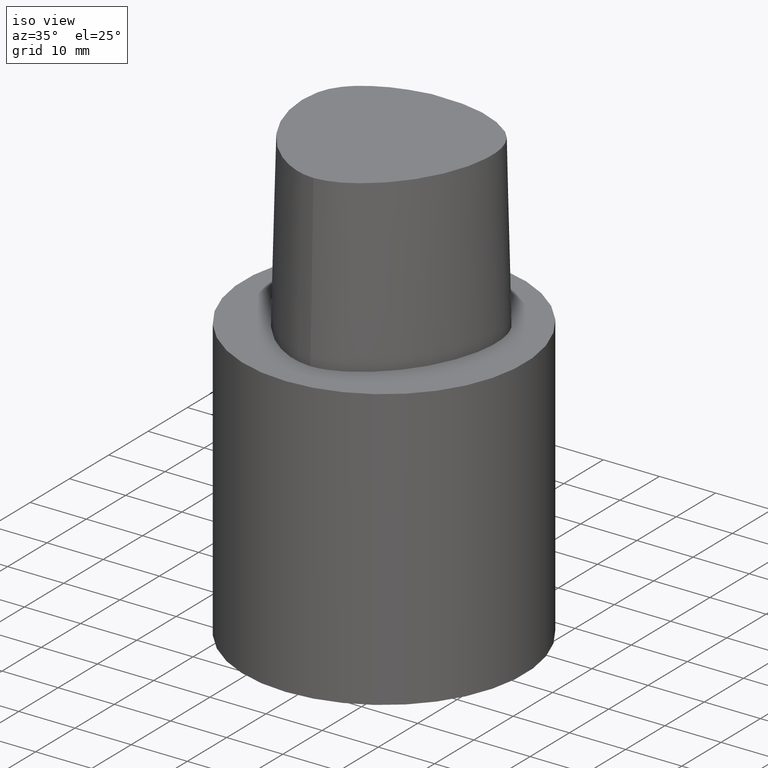
[diagram: clean part render]
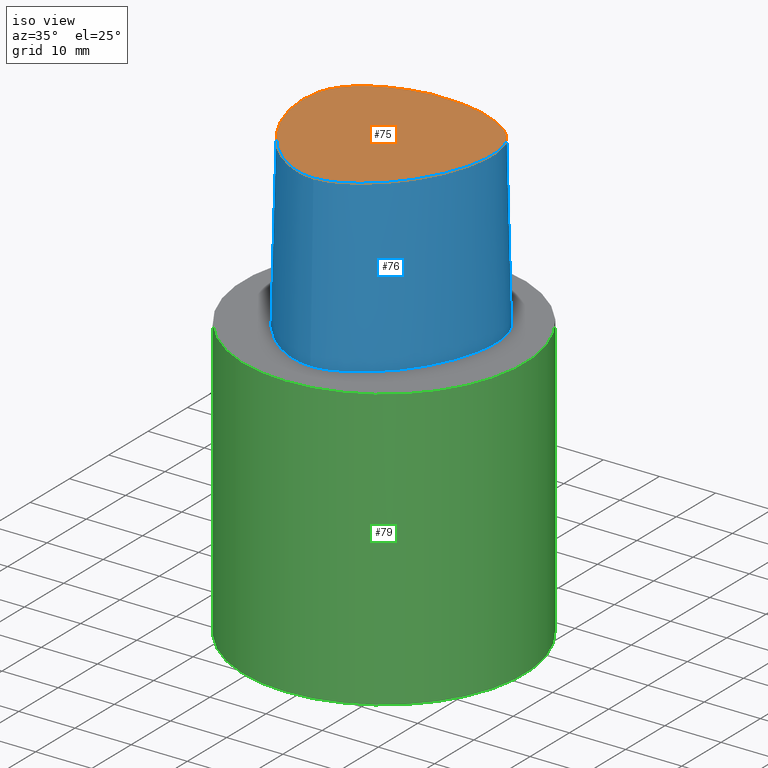
[diagram: same view with three faces highlighted in distinct colors, each labeled with its STEP entity id]
A machine part, iso view with three faces highlighted in distinct colors.
Their STEP definitions:

[orange] entity #75 — the highlighted planar face has unit normal (-0, 0, 1).
#75=ADVANCED_FACE('',(#81),#82,.T.);
#81=FACE_OUTER_BOUND('',#93,.T.);
#82=PLANE('',#94);
#93=EDGE_LOOP('',(#488));
#94=AXIS2_PLACEMENT_3D('',#489,#490,#491);
#488=ORIENTED_EDGE('',*,*,#510,.F.);
#489=CARTESIAN_POINT('',(-0.000657534264248203,-1.65575572608802,30.0));
#490=DIRECTION('',(-0.0,2.95577857036584E-049,1.0));
#491=DIRECTION('',(1.0,0.0,0.0));
#510=EDGE_CURVE('',#515,#515,#516,.T.);
#515=VERTEX_POINT('',#524);
#516=B_SPLINE_CURVE_WITH_KNOTS('',3,(#525,#526,#527,#528,#529,#530,#531,#532,#533,#534,#535,#536,#537,#538,#539,#540,#541,#542,#543,#544,#545,#546,#547,#548,#549,#550,#551,#552,#553,#554,#555,#556,#557,#558,#559,#560,#561,#562,#563,#564,#565,#566,#567,#568,#569,#570,#571,#572,#573),.UNSPECIFIED.,.T.,.F.,(4,1,1,1,1,1,1,1,1,1,1,1,1,1,1,1,1,1,1,1,1,1,1,1,1,1,1,1,1,1,1,1,1,1,1,1,1,1,1,1,1,1,1,1,1,1,4),(0.0,0.023135829350767,0.046149078767971,0.068686553945372,0.09058948843834,0.11187442371895,0.132659030725504,0.153111474090064,0.173428097006866,0.193812703683075,0.214465113334926,0.235566638619369,0.257256396596226,0.279590584305387,0.302476275092963,0.325611612149197,0.348735785989546,0.371826971229282,0.39455923139207,0.416669726533691,0.438154204641074,0.459103554741756,0.479643077908811,0.50010643098029,0.520399705216369,0.54092682403315,0.561890845659905,0.583370991138857,0.605476574502583,0.62820876493626,0.65131550684809,0.674427687768046,0.697531018602722,0.720425222070344,0.742763449220249,0.764449723968905,0.785551037463572,0.806204240231889,0.826588983931571,0.846905402970388,0.867357715119018,0.88814171778586,0.909429413217286,0.931324749020081,0.953885589892717,0.976862732393428,1.0),.UNSPECIFIED.);
#524=CARTESIAN_POINT('',(-2.78602932413959E-015,-17.9423775546504,30.0));
#525=CARTESIAN_POINT('',(-2.78602932413959E-015,-17.9423775546504,30.0));
#526=CARTESIAN_POINT('',(-0.814120797978075,-17.9643878187761,30.0));
#527=CARTESIAN_POINT('',(-2.44279318309434,-17.6670056599032,30.0));
#528=CARTESIAN_POINT('',(-4.69065600148019,-16.7591312239375,30.0));
#529=CARTESIAN_POINT('',(-6.73157621234646,-15.527654017863,30.0));
#530=CARTESIAN_POINT('',(-8.55606567082544,-14.0980586872352,30.0));
#531=CARTESIAN_POINT('',(-10.1771160862307,-12.5294920614813,30.0));
#532=CARTESIAN_POINT('',(-11.6098311271326,-10.8549672983455,30.0));
#533=CARTESIAN_POINT('',(-12.8723444784573,-9.09084166630711,30.0));
#534=CARTESIAN_POINT('',(-13.9762474627415,-7.23982146073079,30.0));
#535=CARTESIAN_POINT('',(-14.9241349859217,-5.29636298798721,30.0));
#536=CARTESIAN_POINT('',(-15.7132736469777,-3.2533357158659,30.0));
#537=CARTESIAN_POINT('',(-16.3266313043064,-1.10238675181427,30.0));
#538=CARTESIAN_POINT('',(-16.7327867713303,1.15808256309649,30.0));
#539=CARTESIAN_POINT('',(-16.8801613787167,3.51564121263174,30.0));
#540=CARTESIAN_POINT('',(-16.6855836228514,5.92229128835704,30.0));
#541=CARTESIAN_POINT('',(-16.0281509658443,8.29517868854449,30.0));
#542=CARTESIAN_POINT('',(-14.6640408300166,10.3669104243273,30.0));
#543=CARTESIAN_POINT('',(-12.8332969997264,11.9882678763451,30.0));
#544=CARTESIAN_POINT('',(-10.7856401290832,13.2404482750702,30.0));
#545=CARTESIAN_POINT('',(-8.65298741417579,14.19764142693,30.0));
#546=CARTESIAN_POINT('',(-6.48957622042645,14.9235651413533,30.0));
#547=CARTESIAN_POINT('',(-4.30784954842127,15.2925809723717,30.0));
#548=CARTESIAN_POINT('',(-2.16867899857279,15.8525920055235,30.0));
#549=CARTESIAN_POINT('',(-0.0054980597270801,15.506533819507,30.0));
#550=CARTESIAN_POINT('',(2.15423811148254,15.6758925558313,30.0));
#551=CARTESIAN_POINT('',(4.31367631773855,15.3366483013887,30.0));
#552=CARTESIAN_POINT('',(6.49156913463884,14.9221231752341,30.0));
#553=CARTESIAN_POINT('',(8.65317555043793,14.199841033848,30.0));
#554=CARTESIAN_POINT('',(10.7855591317115,13.2388028674922,30.0));
#555=CARTESIAN_POINT('',(12.8289446834375,11.9844078416963,30.0));
#556=CARTESIAN_POINT('',(14.6809214389867,10.37934328945,30.0));
#557=CARTESIAN_POINT('',(15.9964040236072,8.28000660116028,30.0));
#558=CARTESIAN_POINT('',(16.6999197177274,5.92601467018833,30.0));
#559=CARTESIAN_POINT('',(16.8785470495877,3.51485696104406,30.0));
#560=CARTESIAN_POINT('',(16.7308989568545,1.15864914401017,30.0));
#561=CARTESIAN_POINT('',(16.3270119409732,-1.10262794482627,30.0));
#562=CARTESIAN_POINT('',(15.7138840293007,-3.25349612648562,30.0));
#563=CARTESIAN_POINT('',(14.9244427410538,-5.29647704660135,30.0));
#564=CARTESIAN_POINT('',(13.9756636589241,-7.23950698099948,30.0));
#565=CARTESIAN_POINT('',(12.8724663956831,-9.09088034657936,30.0));
#566=CARTESIAN_POINT('',(11.6099597844916,-10.8551381410581,30.0));
#567=CARTESIAN_POINT('',(10.1759690661341,-12.5282962499649,30.0));
#568=CARTESIAN_POINT('',(8.55887653552809,-14.1013446755591,30.0));
#569=CARTESIAN_POINT('',(6.72595297076831,-15.5205541881092,30.0));
#570=CARTESIAN_POINT('',(4.69995925068727,-16.7729025475684,30.0));
#571=CARTESIAN_POINT('',(2.43523789305481,-17.660279021922,30.0));
#572=CARTESIAN_POINT('',(0.814171408394767,-17.9203659222405,30.0));
#573=CARTESIAN_POINT('',(-2.83508942413959E-015,-17.9423775546504,30.0));

[blue] entity #76 — the highlighted face is a freeform B-spline surface patch.
#76=ADVANCED_FACE('',(#83),#84,.F.);
#83=FACE_OUTER_BOUND('',#95,.T.);
#84=B_SPLINE_SURFACE_WITH_KNOTS('',3,3,((#96,#97,#98,#99),(#100,#101,#102,#103),(#104,#105,#106,#107),(#108,#109,#110,#111),(#112,#113,#114,#115),(#116,#117,#118,#119),(#120,#121,#122,#123),(#124,#125,#126,#127),(#128,#129,#130,#131),(#132,#133,#134,#135),(#136,#137,#138,#139),(#140,#141,#142,#143),(#144,#145,#146,#147),(#148,#149,#150,#151),(#152,#153,#154,#155),(#156,#157,#158,#159),(#160,#161,#162,#163),(#164,#165,#166,#167),(#168,#169,#170,#171),(#172,#173,#174,#175),(#176,#177,#178,#179),(#180,#181,#182,#183),(#184,#185,#186,#187),(#188,#189,#190,#191),(#192,#193,#194,#195),(#196,#197,#198,#199),(#200,#201,#202,#203),(#204,#205,#206,#207),(#208,#209,#210,#211),(#212,#213,#214,#215),(#216,#217,#218,#219),(#220,#221,#222,#223),(#224,#225,#226,#227),(#228,#229,#230,#231),(#232,#233,#234,#235),(#236,#237,#238,#239),(#240,#241,#242,#243),(#244,#245,#246,#247),(#248,#249,#250,#251),(#252,#253,#254,#255),(#256,#257,#258,#259),(#260,#261,#262,#263),(#264,#265,#266,#267),(#268,#269,#270,#271),(#272,#273,#274,#275),(#276,#277,#278,#279),(#280,#281,#282,#283),(#284,#285,#286,#287),(#288,#289,#290,#291),(#292,#293,#294,#295),(#296,#297,#298,#299),(#300,#301,#302,#303),(#304,#305,#306,#307),(#308,#309,#310,#311),(#312,#313,#314,#315),(#316,#317,#318,#319),(#320,#321,#322,#323),(#324,#325,#326,#327),(#328,#329,#330,#331),(#332,#333,#334,#335),(#336,#337,#338,#339),(#340,#341,#342,#343),(#344,#345,#346,#347),(#348,#349,#350,#351),(#352,#353,#354,#355),(#356,#357,#358,#359),(#360,#361,#362,#363),(#364,#365,#366,#367),(#368,#369,#370,#371),(#372,#373,#374,#375),(#376,#377,#378,#379),(#380,#381,#382,#383),(#384,#385,#386,#387),(#388,#389,#390,#391),(#392,#393,#394,#395),(#396,#397,#398,#399),(#400,#401,#402,#403),(#404,#405,#406,#407),(#408,#409,#410,#411),(#412,#413,#414,#415),(#416,#417,#418,#419),(#420,#421,#422,#423),(#424,#425,#426,#427),(#428,#429,#430,#431),(#432,#433,#434,#435),(#436,#437,#438,#439),(#440,#441,#442,#443),(#444,#445,#446,#447),(#448,#449,#450,#451),(#452,#453,#454,#455),(#456,#457,#458,#459),(#460,#461,#462,#463),(#464,#465,#466,#467),(#468,#469,#470,#471),(#472,#473,#474,#475),(#476,#477,#478,#479)),.UNSPECIFIED.,.T.,.F.,.F.,(4,2,2,2,2,2,2,2,2,2,2,2,2,2,2,2,2,2,2,2,2,2,2,2,2,2,2,2,2,2,2,2,2,2,2,2,2,2,2,2,2,2,2,2,2,2,2,4),(4,4),(0.0,0.000251979175567,0.023135829350767,0.046149078767971,0.068686553945372,0.09058948843834,0.11187442371895,0.132659030725504,0.153111474090064,0.173428097006866,0.193812703683075,0.214465113334926,0.235566638619369,0.257256396596226,0.279590584305387,0.302476275092963,0.325611612149197,0.348735785989546,0.371826971229282,0.39455923139207,0.416669726533691,0.438154204641074,0.459103554741756,0.479643077908811,0.50010643098029,0.520399705216369,0.54092682403315,0.561890845659905,0.583370991138857,0.605476574502583,0.62820876493626,0.65131550684809,0.674427687768046,0.697531018602722,0.720425222070344,0.742763449220249,0.764449723968905,0.785551037463572,0.806204240231889,0.826588983931571,0.846905402970388,0.867357715119018,0.88814171778586,0.909429413217286,0.931324749020081,0.953885589892717,0.976862732393428,1.0),(0.0,1.0),.UNSPECIFIED.);
#95=EDGE_LOOP('',(#492,#493,#494,#495));
#96=CARTESIAN_POINT('',(-0.00144332333831829,-18.693734925237,1.58949405722709E-031));
#97=CARTESIAN_POINT('',(-0.000962215558880259,-18.4432824683748,10.0));
#98=CARTESIAN_POINT('',(-0.000481107779441228,-18.1928300115126,20.0));
#99=CARTESIAN_POINT('',(-2.78602932413959E-015,-17.9423775546504,30.0));
#100=CARTESIAN_POINT('',(-0.0107097733408023,-18.6937739851458,1.18444691579815E-031));
#101=CARTESIAN_POINT('',(-0.0100954592068633,-18.4433884150843,10.0));
#102=CARTESIAN_POINT('',(-0.00948114507292523,-18.1930028450229,20.0));
#103=CARTESIAN_POINT('',(-0.0088668309389872,-17.9426172749614,30.0));
#104=CARTESIAN_POINT('',(-0.0199759398304303,-18.6937986220233,1.90667064494336E-031));
#105=CARTESIAN_POINT('',(-0.0192286078889683,-18.443477981273,10.0));
#106=CARTESIAN_POINT('',(-0.0184812759475062,-18.1931573405227,20.0));
#107=CARTESIAN_POINT('',(-0.0177339440060442,-17.9428366997724,30.0));
#108=CARTESIAN_POINT('',(-0.87073259155424,-18.6947332287258,-2.46519032881566E-032));
#109=CARTESIAN_POINT('',(-0.857789307239019,-18.4501991588251,10.0));
#110=CARTESIAN_POINT('',(-0.844846022923799,-18.2056650889244,20.0));
#111=CARTESIAN_POINT('',(-0.831902738608578,-17.9611310190237,30.0));
#112=CARTESIAN_POINT('',(-1.7132146687811,-18.5561236138986,-1.72563323017096E-031));
#113=CARTESIAN_POINT('',(-1.68853934634042,-18.3083565318266,10.0));
#114=CARTESIAN_POINT('',(-1.66386402389973,-18.0605894497547,20.0));
#115=CARTESIAN_POINT('',(-1.63918870145905,-17.8128223676827,30.0));
#116=CARTESIAN_POINT('',(-3.34678034951543,-18.1076178270182,1.23259516440783E-031));
#117=CARTESIAN_POINT('',(-3.29783533712276,-17.8588133839209,10.0));
#118=CARTESIAN_POINT('',(-3.2488903247301,-17.6100089408236,20.0));
#119=CARTESIAN_POINT('',(-3.19994531233743,-17.3612044977262,30.0));
#120=CARTESIAN_POINT('',(-4.13763295357352,-17.7966649911857,0.0));
#121=CARTESIAN_POINT('',(-4.0761172500848,-17.5501178452923,10.0));
#122=CARTESIAN_POINT('',(-4.01460154659607,-17.3035706993988,20.0));
#123=CARTESIAN_POINT('',(-3.95308584310734,-17.0570235535054,30.0));
#124=CARTESIAN_POINT('',(-5.64401230436313,-17.0611782657116,-1.4791141972894E-031));
#125=CARTESIAN_POINT('',(-5.55832797221116,-16.8204477111443,10.0));
#126=CARTESIAN_POINT('',(-5.47264364005918,-16.579717156577,20.0));
#127=CARTESIAN_POINT('',(-5.38695930790721,-16.3389866020097,30.0));
#128=CARTESIAN_POINT('',(-6.36074874666199,-16.6390568826018,9.86076131526265E-032));
#129=CARTESIAN_POINT('',(-6.26345492796379,-16.4018805948509,10.0));
#130=CARTESIAN_POINT('',(-6.16616110926559,-16.1647043071,20.0));
#131=CARTESIAN_POINT('',(-6.06886729056739,-15.9275280193492,30.0));
#132=CARTESIAN_POINT('',(-7.71193183747336,-15.717785465073,-9.86076131526265E-032));
#133=CARTESIAN_POINT('',(-7.59368812813217,-15.4910037252687,10.0));
#134=CARTESIAN_POINT('',(-7.47544441879098,-15.2642219854644,20.0));
#135=CARTESIAN_POINT('',(-7.35720070944979,-15.0374402456601,30.0));
#136=CARTESIAN_POINT('',(-8.34816817062737,-15.221133209089,-1.97215226305253E-031));
#137=CARTESIAN_POINT('',(-8.22051571454826,-15.00109827281,10.0));
#138=CARTESIAN_POINT('',(-8.09286325846916,-14.7810633365309,20.0));
#139=CARTESIAN_POINT('',(-7.96521080239006,-14.5610284002518,30.0));
#140=CARTESIAN_POINT('',(-9.54864267958622,-14.1801662707339,0.0));
#141=CARTESIAN_POINT('',(-9.40278907714181,-13.973781486088,10.0));
#142=CARTESIAN_POINT('',(-9.2569354746974,-13.7673967014422,20.0));
#143=CARTESIAN_POINT('',(-9.11108187225298,-13.5610119167963,30.0));
#144=CARTESIAN_POINT('',(-10.1143778244459,-13.6375391489888,-9.86076131526265E-032));
#145=CARTESIAN_POINT('',(-9.95973124662278,-13.4380654710166,10.0));
#146=CARTESIAN_POINT('',(-9.80508466879963,-13.2385917930443,20.0));
#147=CARTESIAN_POINT('',(-9.65043809097647,-13.0391181150721,30.0));
#148=CARTESIAN_POINT('',(-11.1785439970871,-12.5139706700162,-9.86076131526265E-032));
#149=CARTESIAN_POINT('',(-11.0073188180941,-12.3291198391006,10.0));
#150=CARTESIAN_POINT('',(-10.8360936391011,-12.1442690081849,20.0));
#151=CARTESIAN_POINT('',(-10.6648684601081,-11.9594181772693,30.0));
#152=CARTESIAN_POINT('',(-11.6782474581115,-11.9342299113078,0.0));
#153=CARTESIAN_POINT('',(-11.4992168459443,-11.7570681317348,10.0));
#154=CARTESIAN_POINT('',(-11.3201862337772,-11.5799063521619,20.0));
#155=CARTESIAN_POINT('',(-11.14115562161,-11.4027445725889,30.0));
#156=CARTESIAN_POINT('',(-12.6162342990191,-10.7421055435185,-1.97215226305253E-031));
#157=CARTESIAN_POINT('',(-12.422869352715,-10.5811641471658,10.0));
#158=CARTESIAN_POINT('',(-12.2295044064109,-10.4202227508131,20.0));
#159=CARTESIAN_POINT('',(-12.0361394601068,-10.2592813544604,30.0));
#160=CARTESIAN_POINT('',(-13.055371557502,-10.1303892417647,0.0));
#161=CARTESIAN_POINT('',(-12.8554593251322,-9.97796456327142,10.0));
#162=CARTESIAN_POINT('',(-12.6555470927624,-9.82553988477815,20.0));
#163=CARTESIAN_POINT('',(-12.4556348603925,-9.67311520628487,30.0));
#164=CARTESIAN_POINT('',(-13.8770457728377,-8.87590863790404,9.86076131526265E-032));
#165=CARTESIAN_POINT('',(-13.6652097035225,-8.74119913968845,10.0));
#166=CARTESIAN_POINT('',(-13.4533736342074,-8.60648964147286,20.0));
#167=CARTESIAN_POINT('',(-13.2415375648923,-8.47178014325727,30.0));
#168=CARTESIAN_POINT('',(-14.2599388402702,-8.2333768267112,-9.86076131526265E-032));
#169=CARTESIAN_POINT('',(-14.0427188656376,-8.1078611110703,10.0));
#170=CARTESIAN_POINT('',(-13.825498891005,-7.98234539542941,20.0));
#171=CARTESIAN_POINT('',(-13.6082789163724,-7.85682967978851,30.0));
#172=CARTESIAN_POINT('',(-14.97168833234,-6.91623888397976,1.97215226305253E-031));
#173=CARTESIAN_POINT('',(-14.744502424861,-6.80958102033921,10.0));
#174=CARTESIAN_POINT('',(-14.5173165173821,-6.70292315669866,20.0));
#175=CARTESIAN_POINT('',(-14.2901306099031,-6.59626529305812,30.0));
#176=CARTESIAN_POINT('',(-15.3003608122286,-6.24153310972228,0.0));
#177=CARTESIAN_POINT('',(-15.0685952338567,-6.1445406228151,10.0));
#178=CARTESIAN_POINT('',(-14.8368296554847,-6.04754813590792,20.0));
#179=CARTESIAN_POINT('',(-14.6050640771127,-5.95055564900075,30.0));
#180=CARTESIAN_POINT('',(-15.9019181796067,-4.85709547419161,0.0));
#181=CARTESIAN_POINT('',(-15.662283006916,-4.7801123098326,10.0));
#182=CARTESIAN_POINT('',(-15.4226478342253,-4.7031291454736,20.0));
#183=CARTESIAN_POINT('',(-15.1830126615346,-4.62614598111459,30.0));
#184=CARTESIAN_POINT('',(-16.1740130050164,-4.14701882283056,1.97215226305253E-031));
#185=CARTESIAN_POINT('',(-15.9311057850842,-4.08038721240699,10.0));
#186=CARTESIAN_POINT('',(-15.6881985651519,-4.01375560198341,20.0));
#187=CARTESIAN_POINT('',(-15.4452913452197,-3.94712399155983,30.0));
#188=CARTESIAN_POINT('',(-16.6580397097976,-2.68928374551173,0.0));
#189=CARTESIAN_POINT('',(-16.4096717886197,-2.64390629476217,10.0));
#190=CARTESIAN_POINT('',(-16.1613038674418,-2.59852884401261,20.0));
#191=CARTESIAN_POINT('',(-15.912935946264,-2.55315139326305,30.0));
#192=CARTESIAN_POINT('',(-16.8685476043865,-1.9411430240201,0.0));
#193=CARTESIAN_POINT('',(-16.6180117970793,-1.90667554264291,10.0));
#194=CARTESIAN_POINT('',(-16.3674759897722,-1.87220806126571,20.0));
#195=CARTESIAN_POINT('',(-16.1169401824651,-1.83774057988851,30.0));
#196=CARTESIAN_POINT('',(-17.2177110849312,-0.406254182783721,0.0));
#197=CARTESIAN_POINT('',(-16.9645510960073,-0.394157589586581,10.0));
#198=CARTESIAN_POINT('',(-16.7113911070835,-0.382060996389442,20.0));
#199=CARTESIAN_POINT('',(-16.4582311181597,-0.369964403192302,30.0));
#200=CARTESIAN_POINT('',(-17.3541927925624,0.380994664903646,0.0));
#201=CARTESIAN_POINT('',(-17.1006283448484,0.381621502930897,10.0));
#202=CARTESIAN_POINT('',(-16.8470638971343,0.382248340958148,20.0));
#203=CARTESIAN_POINT('',(-16.5934994494202,0.3828751789854,30.0));
#204=CARTESIAN_POINT('',(-17.5416073974851,1.99022033864964,0.0));
#205=CARTESIAN_POINT('',(-17.2879250821218,1.96758702914455,10.0));
#206=CARTESIAN_POINT('',(-17.0342427667585,1.94495371963946,20.0));
#207=CARTESIAN_POINT('',(-16.7805604513952,1.92232041013437,30.0));
#208=CARTESIAN_POINT('',(-17.5899626525416,2.81255460248461,0.0));
#209=CARTESIAN_POINT('',(-17.3365596173661,2.77812464024157,10.0));
#210=CARTESIAN_POINT('',(-17.0831565821905,2.74369467799853,20.0));
#211=CARTESIAN_POINT('',(-16.829753547015,2.70926471575549,30.0));
#212=CARTESIAN_POINT('',(-17.563584952533,4.47617713465644,0.0));
#213=CARTESIAN_POINT('',(-17.3145851680365,4.41811248243967,10.0));
#214=CARTESIAN_POINT('',(-17.0655853835399,4.36004783022291,20.0));
#215=CARTESIAN_POINT('',(-16.8165855990433,4.30198317800614,30.0));
#216=CARTESIAN_POINT('',(-17.4857707493695,5.31746225938347,0.0));
#217=CARTESIAN_POINT('',(-17.2409938090672,5.24755565989352,10.0));
#218=CARTESIAN_POINT('',(-16.996216868765,5.17764906040356,20.0));
#219=CARTESIAN_POINT('',(-16.7514399284628,5.1077424609136,30.0));
#220=CARTESIAN_POINT('',(-17.1712152948197,6.98496502795616,0.0));
#221=CARTESIAN_POINT('',(-16.9368056794016,6.89253334184439,10.0));
#222=CARTESIAN_POINT('',(-16.7023960639834,6.80010165573262,20.0));
#223=CARTESIAN_POINT('',(-16.4679864485652,6.70766996962085,30.0));
#224=CARTESIAN_POINT('',(-16.932846471387,7.81104073212088,0.0));
#225=CARTESIAN_POINT('',(-16.7045695266813,7.70789911330269,10.0));
#226=CARTESIAN_POINT('',(-16.4762925819757,7.60475749448451,20.0));
#227=CARTESIAN_POINT('',(-16.2480156372701,7.50161587566632,30.0));
#228=CARTESIAN_POINT('',(-16.2234989303146,9.36022258130064,0.0));
#229=CARTESIAN_POINT('',(-16.006694256812,9.2355839699834,10.0));
#230=CARTESIAN_POINT('',(-15.7898895833095,9.11094535866616,20.0));
#231=CARTESIAN_POINT('',(-15.573084909807,8.98630674734893,30.0));
#232=CARTESIAN_POINT('',(-15.7525288634429,10.0833544868442,0.0));
#233=CARTESIAN_POINT('',(-15.5410987194018,9.94793676604449,10.0));
#234=CARTESIAN_POINT('',(-15.3296685753606,9.81251904524477,20.0));
#235=CARTESIAN_POINT('',(-15.1182384313194,9.67710132444505,30.0));
#236=CARTESIAN_POINT('',(-14.6462939775209,11.3794173305263,0.0));
#237=CARTESIAN_POINT('',(-14.4475400257935,11.2231760687952,10.0));
#238=CARTESIAN_POINT('',(-14.2487860740662,11.0669348070641,20.0));
#239=CARTESIAN_POINT('',(-14.0500321223388,10.910693545333,30.0));
#240=CARTESIAN_POINT('',(-14.0112703709932,11.9525998966018,0.0));
#241=CARTESIAN_POINT('',(-13.819813364096,11.7863002355578,10.0));
#242=CARTESIAN_POINT('',(-13.6283563571989,11.6200005745138,20.0));
#243=CARTESIAN_POINT('',(-13.4368993503018,11.4537009134698,30.0));
#244=CARTESIAN_POINT('',(-12.6649577858213,12.9708269345166,0.0));
#245=CARTESIAN_POINT('',(-12.4890669244363,12.7851819839693,10.0));
#246=CARTESIAN_POINT('',(-12.3131760630513,12.5995370334219,20.0));
#247=CARTESIAN_POINT('',(-12.1372852016663,12.4138920828746,30.0));
#248=CARTESIAN_POINT('',(-11.9549187103733,13.4176956956896,9.86076131526265E-032));
#249=CARTESIAN_POINT('',(-11.7873098339794,13.2227639524981,10.0));
#250=CARTESIAN_POINT('',(-11.6197009575855,13.0278322093067,20.0));
#251=CARTESIAN_POINT('',(-11.4520920811916,12.8329004661152,30.0));
#252=CARTESIAN_POINT('',(-10.5004911910335,14.1970175551563,0.0));
#253=CARTESIAN_POINT('',(-10.3519002595758,13.9875137158012,10.0));
#254=CARTESIAN_POINT('',(-10.2033093281182,13.7780098764462,20.0));
#255=CARTESIAN_POINT('',(-10.0547183966605,13.5685060370911,30.0));
#256=CARTESIAN_POINT('',(-9.7575533569854,14.5322819629711,-9.86076131526265E-032));
#257=CARTESIAN_POINT('',(-9.6196317666537,14.317384933706,10.0));
#258=CARTESIAN_POINT('',(-9.48171017632199,14.1024879044408,20.0));
#259=CARTESIAN_POINT('',(-9.34378858599028,13.8875908751756,30.0));
#260=CARTESIAN_POINT('',(-8.26254539063019,15.1133265717584,-9.86076131526265E-032));
#261=CARTESIAN_POINT('',(-8.14565787676333,14.8909897181613,10.0));
#262=CARTESIAN_POINT('',(-8.02877036289647,14.6686528645642,20.0));
#263=CARTESIAN_POINT('',(-7.91188284902961,14.4463160109672,30.0));
#264=CARTESIAN_POINT('',(-7.51128946075537,15.3613193072948,-9.86076131526265E-032));
#265=CARTESIAN_POINT('',(-7.40478006186719,15.1368628190065,10.0));
#266=CARTESIAN_POINT('',(-7.29827066297902,14.9124063307183,20.0));
#267=CARTESIAN_POINT('',(-7.19176126409085,14.68794984243,30.0));
#268=CARTESIAN_POINT('',(-6.00522655029125,15.7739014771636,0.0));
#269=CARTESIAN_POINT('',(-5.9185648296447,15.5324214684349,10.0));
#270=CARTESIAN_POINT('',(-5.83190310899816,15.2909414597062,20.0));
#271=CARTESIAN_POINT('',(-5.74524138835162,15.0494614509775,30.0));
#272=CARTESIAN_POINT('',(-5.25098149060303,15.940365829473,4.93038065763132E-032));
#273=CARTESIAN_POINT('',(-5.1738030580021,15.6843178791594,10.0));
#274=CARTESIAN_POINT('',(-5.09662462540118,15.4282699288458,20.0));
#275=CARTESIAN_POINT('',(-5.01944619280025,15.1722219785322,30.0));
#276=CARTESIAN_POINT('',(-3.74452370137136,16.1783002530882,4.93038065763132E-032));
#277=CARTESIAN_POINT('',(-3.69117645312028,15.9461836867844,10.0));
#278=CARTESIAN_POINT('',(-3.6378292048692,15.7140671204805,20.0));
#279=CARTESIAN_POINT('',(-3.58448195661811,15.4819505541766,30.0));
#280=CARTESIAN_POINT('',(-2.9925639102356,16.2517640462219,-1.97215226305253E-031));
#281=CARTESIAN_POINT('',(-2.95346441528309,16.057047879441,10.0));
#282=CARTESIAN_POINT('',(-2.91436492033059,15.8623317126601,20.0));
#283=CARTESIAN_POINT('',(-2.87526542537808,15.6676155458792,30.0));
#284=CARTESIAN_POINT('',(-1.48914620895443,16.3898646921674,-1.84889274661175E-031));
#285=CARTESIAN_POINT('',(-1.47403943709592,16.1721206344779,10.0));
#286=CARTESIAN_POINT('',(-1.45893266523741,15.9543765767885,20.0));
#287=CARTESIAN_POINT('',(-1.44382589337891,15.736632519099,30.0));
#288=CARTESIAN_POINT('',(-0.737689844422075,16.454322887119,1.84889274661175E-031));
#289=CARTESIAN_POINT('',(-0.732346856381885,16.1765829461896,10.0));
#290=CARTESIAN_POINT('',(-0.727003868341696,15.8988430052601,20.0));
#291=CARTESIAN_POINT('',(-0.721660880301506,15.6211030643306,30.0));
#292=CARTESIAN_POINT('',(0.759326987696435,16.4536103338567,6.77927340424307E-032));
#293=CARTESIAN_POINT('',(0.744772284411259,16.1567684440139,10.0));
#294=CARTESIAN_POINT('',(0.730217581126082,15.8599265541711,20.0));
#295=CARTESIAN_POINT('',(0.715662877840905,15.5630846643283,30.0));
#296=CARTESIAN_POINT('',(1.50487089700432,16.3916719627081,-1.97215226305253E-031));
#297=CARTESIAN_POINT('',(1.48019058739138,16.1341698062135,10.0));
#298=CARTESIAN_POINT('',(1.45551027777844,15.8766676497189,20.0));
#299=CARTESIAN_POINT('',(1.4308299681655,15.6191654932243,30.0));
#300=CARTESIAN_POINT('',(3.00152605278829,16.2529050894156,-7.39557098644699E-032));
#301=CARTESIAN_POINT('',(2.95552136672266,16.0234256510638,10.0));
#302=CARTESIAN_POINT('',(2.90951668065703,15.793946212712,20.0));
#303=CARTESIAN_POINT('',(2.8635119945914,15.5644667743601,30.0));
#304=CARTESIAN_POINT('',(3.75259609178933,16.1756990011092,-9.86076131526265E-032));
#305=CARTESIAN_POINT('',(3.69538373511329,15.9343850024586,10.0));
#306=CARTESIAN_POINT('',(3.63817137843724,15.6930710038081,20.0));
#307=CARTESIAN_POINT('',(3.5809590217612,15.4517570051576,30.0));
#308=CARTESIAN_POINT('',(5.25866006360267,15.9348272624441,-1.4791141972894E-031));
#309=CARTESIAN_POINT('',(5.18031230656092,15.6903925478485,10.0));
#310=CARTESIAN_POINT('',(5.10196454951916,15.4459578332528,20.0));
#311=CARTESIAN_POINT('',(5.0236167924774,15.2015231186572,30.0));
#312=CARTESIAN_POINT('',(6.01339669607053,15.7693347335975,1.4791141972894E-031));
#313=CARTESIAN_POINT('',(5.92515371912723,15.5340637916491,10.0));
#314=CARTESIAN_POINT('',(5.83691074218392,15.2987928497007,20.0));
#315=CARTESIAN_POINT('',(5.74866776524061,15.0635219077523,30.0));
#316=CARTESIAN_POINT('',(7.52174791015443,15.3636385273713,0.0));
#317=CARTESIAN_POINT('',(7.41236551339817,15.1382741434445,10.0));
#318=CARTESIAN_POINT('',(7.30298311664192,14.9129097595177,20.0));
#319=CARTESIAN_POINT('',(7.19360071988566,14.6875453755909,30.0));
#320=CARTESIAN_POINT('',(8.27488011859475,15.1217203315759,0.0));
#321=CARTESIAN_POINT('',(8.15422540433745,14.8968776831996,10.0));
#322=CARTESIAN_POINT('',(8.03357069008015,14.6720350348233,20.0));
#323=CARTESIAN_POINT('',(7.91291597582285,14.447192386447,30.0));
#324=CARTESIAN_POINT('',(9.77128987676661,14.5452319544132,9.86076131526265E-032));
#325=CARTESIAN_POINT('',(9.62880899878857,14.326342664318,10.0));
#326=CARTESIAN_POINT('',(9.48632812081053,14.1074533742228,20.0));
#327=CARTESIAN_POINT('',(9.34384724283248,13.8885640841276,30.0));
#328=CARTESIAN_POINT('',(10.5136604457977,14.20816965576,0.0));
#329=CARTESIAN_POINT('',(10.3606500434029,13.9948543292993,10.0));
#330=CARTESIAN_POINT('',(10.2076396410081,13.7815390028386,20.0));
#331=CARTESIAN_POINT('',(10.0546292386134,13.5682236763779,30.0));
#332=CARTESIAN_POINT('',(11.9637825858721,13.4211978486476,-9.86076131526265E-032));
#333=CARTESIAN_POINT('',(11.7926449452636,13.2243613953672,10.0));
#334=CARTESIAN_POINT('',(11.6215073046551,13.0275249420869,20.0));
#335=CARTESIAN_POINT('',(11.4503696640467,12.8306884888065,30.0));
#336=CARTESIAN_POINT('',(12.6699581239128,12.9683397391863,1.97215226305253E-031));
#337=CARTESIAN_POINT('',(12.4913137432795,12.7825617125421,10.0));
#338=CARTESIAN_POINT('',(12.3126693626462,12.5967836858979,20.0));
#339=CARTESIAN_POINT('',(12.1340249820129,12.4110056592537,30.0));
#340=CARTESIAN_POINT('',(14.0107896940302,11.9417697294217,0.0));
#341=CARTESIAN_POINT('',(13.8203647246268,11.779593533552,10.0));
#342=CARTESIAN_POINT('',(13.6299397552234,11.6174173376822,20.0));
#343=CARTESIAN_POINT('',(13.43951478582,11.4552411418124,30.0));
#344=CARTESIAN_POINT('',(14.6441161661191,11.3662092641098,0.0));
#345=CARTESIAN_POINT('',(14.4494591335801,11.2165913497588,10.0));
#346=CARTESIAN_POINT('',(14.2548021010411,11.0669734354078,20.0));
#347=CARTESIAN_POINT('',(14.0601450685021,10.9173555210568,30.0));
#348=CARTESIAN_POINT('',(15.7473444143777,10.0678607932392,-1.97215226305253E-031));
#349=CARTESIAN_POINT('',(15.5380305450157,9.93843548364637,10.0));
#350=CARTESIAN_POINT('',(15.3287166756537,9.80901017405358,20.0));
#351=CARTESIAN_POINT('',(15.1194028062917,9.67958486446079,30.0));
#352=CARTESIAN_POINT('',(16.2172279070315,9.34515014826243,0.0));
#353=CARTESIAN_POINT('',(15.9974810667072,9.22332067417376,10.0));
#354=CARTESIAN_POINT('',(15.7777342263829,9.10149120008509,20.0));
#355=CARTESIAN_POINT('',(15.5579873860586,8.97966172599642,30.0));
#356=CARTESIAN_POINT('',(16.9299748942786,7.79911649806176,-1.97215226305253E-031));
#357=CARTESIAN_POINT('',(16.697209573927,7.69700008193361,10.0));
#358=CARTESIAN_POINT('',(16.4644442535753,7.59488366580546,20.0));
#359=CARTESIAN_POINT('',(16.2316789332237,7.49276724967732,30.0));
#360=CARTESIAN_POINT('',(17.1732678868715,6.97591096726165,0.0));
#361=CARTESIAN_POINT('',(16.9377998418102,6.88588376045097,10.0));
#362=CARTESIAN_POINT('',(16.7023317967489,6.79585655364029,20.0));
#363=CARTESIAN_POINT('',(16.4668637516877,6.70582934682961,30.0));
#364=CARTESIAN_POINT('',(17.4947165291087,5.31078187777496,0.0));
#365=CARTESIAN_POINT('',(17.2499146962424,5.24413364646022,10.0));
#366=CARTESIAN_POINT('',(17.0051128633761,5.17748541514548,20.0));
#367=CARTESIAN_POINT('',(16.7603110305098,5.11083718383074,30.0));
#368=CARTESIAN_POINT('',(17.5742122859752,4.46891080588121,0.0));
#369=CARTESIAN_POINT('',(17.3228600878308,4.41362005176088,10.0));
#370=CARTESIAN_POINT('',(17.0715078896864,4.35832929764054,20.0));
#371=CARTESIAN_POINT('',(16.820155691542,4.30303854352021,30.0));
#372=CARTESIAN_POINT('',(17.5984503582426,2.80469955056706,0.0));
#373=CARTESIAN_POINT('',(17.3416448178557,2.77271702976205,10.0));
#374=CARTESIAN_POINT('',(17.0848392774688,2.74073450895705,20.0));
#375=CARTESIAN_POINT('',(16.8280337370819,2.70875198815205,30.0));
#376=CARTESIAN_POINT('',(17.5464797751086,1.98232636532396,0.0));
#377=CARTESIAN_POINT('',(17.2905688899393,1.96229189124182,10.0));
#378=CARTESIAN_POINT('',(17.03465800477,1.94225741715969,20.0));
#379=CARTESIAN_POINT('',(16.7787471196007,1.92222294307756,30.0));
#380=CARTESIAN_POINT('',(17.3530324455179,0.373802434650424,0.0));
#381=CARTESIAN_POINT('',(17.0994767173366,0.376877818519899,10.0));
#382=CARTESIAN_POINT('',(16.8459209891553,0.379953202389375,20.0));
#383=CARTESIAN_POINT('',(16.592365260974,0.38302858625885,30.0));
#384=CARTESIAN_POINT('',(17.2140873477037,-0.412741037255912,0.0));
#385=CARTESIAN_POINT('',(16.9620164787111,-0.398479056563165,10.0));
#386=CARTESIAN_POINT('',(16.7099456097185,-0.384217075870417,20.0));
#387=CARTESIAN_POINT('',(16.4578747407259,-0.36995509517767,30.0));
#388=CARTESIAN_POINT('',(16.8640679933744,-1.94732109648072,0.0));
#389=CARTESIAN_POINT('',(16.6151864752681,-1.91083729661662,10.0));
#390=CARTESIAN_POINT('',(16.3663049571618,-1.87435349675252,20.0));
#391=CARTESIAN_POINT('',(16.1174234390555,-1.83786969688842,30.0));
#392=CARTESIAN_POINT('',(16.6550051401061,-2.69581759912329,0.0));
#393=CARTESIAN_POINT('',(16.4078328719465,-2.64830479422568,10.0));
#394=CARTESIAN_POINT('',(16.1606606037869,-2.60079198932806,20.0));
#395=CARTESIAN_POINT('',(15.9134883356272,-2.55327918443045,30.0));
#396=CARTESIAN_POINT('',(16.1721668251879,-4.15391144824405,0.0));
#397=CARTESIAN_POINT('',(15.9300461330195,-4.08502552490645,10.0));
#398=CARTESIAN_POINT('',(15.687925440851,-4.01613960156886,20.0));
#399=CARTESIAN_POINT('',(15.4458047486826,-3.94725367823126,30.0));
#400=CARTESIAN_POINT('',(15.8998720313717,-4.86400476772738,0.0));
#401=CARTESIAN_POINT('',(15.661054167828,-4.78476267459024,10.0));
#402=CARTESIAN_POINT('',(15.4222363042844,-4.7055205814531,20.0));
#403=CARTESIAN_POINT('',(15.1834184407408,-4.62627848831596,30.0));
#404=CARTESIAN_POINT('',(15.2976461182969,-6.24821889850589,0.0));
#405=CARTESIAN_POINT('',(15.066785158199,-6.1489935427713,10.0));
#406=CARTESIAN_POINT('',(14.835924198101,-6.04976818703671,20.0));
#407=CARTESIAN_POINT('',(14.6050632380031,-5.95054283130213,30.0));
#408=CARTESIAN_POINT('',(14.9685089040774,-6.9226902547916,0.0));
#409=CARTESIAN_POINT('',(14.7422843243426,-6.81382910058657,10.0));
#410=CARTESIAN_POINT('',(14.5160597446078,-6.70496794638155,20.0));
#411=CARTESIAN_POINT('',(14.289835164873,-6.59610679217652,30.0));
#412=CARTESIAN_POINT('',(14.2562315235154,-8.23953226144279,0.0));
#413=CARTESIAN_POINT('',(14.0401299125225,-8.11190119677291,10.0));
#414=CARTESIAN_POINT('',(13.8240283015295,-7.98427013210303,20.0));
#415=CARTESIAN_POINT('',(13.6079266905365,-7.85663906743315,30.0));
#416=CARTESIAN_POINT('',(13.8732695848357,-8.88199998589755,0.0));
#417=CARTESIAN_POINT('',(13.6626538186463,-8.74523421675992,10.0));
#418=CARTESIAN_POINT('',(13.452038052457,-8.6084684476223,20.0));
#419=CARTESIAN_POINT('',(13.2414222862676,-8.47170267848467,30.0));
#420=CARTESIAN_POINT('',(13.0515094984057,-10.1364217212122,0.0));
#421=CARTESIAN_POINT('',(12.8529252736477,-9.98201466493214,10.0));
#422=CARTESIAN_POINT('',(12.6543410488897,-9.82760760865208,20.0));
#423=CARTESIAN_POINT('',(12.4557568241316,-9.67320055237201,30.0));
#424=CARTESIAN_POINT('',(12.612354568037,-10.7481421677501,0.0));
#425=CARTESIAN_POINT('',(12.4203230294729,-10.5852333785259,10.0));
#426=CARTESIAN_POINT('',(12.2282914909089,-10.4223245893016,20.0));
#427=CARTESIAN_POINT('',(12.0362599523449,-10.2594158000774,30.0));
#428=CARTESIAN_POINT('',(11.6737441165097,-11.9397215871539,0.0));
#429=CARTESIAN_POINT('',(11.4961244688085,-11.7606300965554,10.0));
#430=CARTESIAN_POINT('',(11.3185048211072,-11.5815386059569,20.0));
#431=CARTESIAN_POINT('',(11.1408851734059,-11.4024471153584,30.0));
#432=CARTESIAN_POINT('',(11.1734254860308,-12.5189032007719,0.0));
#433=CARTESIAN_POINT('',(11.0036847329514,-12.3321462040666,10.0));
#434=CARTESIAN_POINT('',(10.8339439798719,-12.1453892073614,20.0));
#435=CARTESIAN_POINT('',(10.6642032267924,-11.9586322106562,30.0));
#436=CARTESIAN_POINT('',(10.1074745701417,-13.640998338336,-9.86076131526265E-032));
#437=CARTESIAN_POINT('',(9.95516556585743,-13.4404679130573,10.0));
#438=CARTESIAN_POINT('',(9.80285656157319,-13.2399374877785,20.0));
#439=CARTESIAN_POINT('',(9.65054755728896,-13.0394070624998,30.0));
#440=CARTESIAN_POINT('',(9.54055189248609,-14.182694679151,0.0));
#441=CARTESIAN_POINT('',(9.3978321445874,-13.9760979394857,10.0));
#442=CARTESIAN_POINT('',(9.25511239668872,-13.7695011998204,20.0));
#443=CARTESIAN_POINT('',(9.11239264879003,-13.5629044601551,30.0));
#444=CARTESIAN_POINT('',(8.33747886858352,-15.2200706351975,-9.86076131526265E-032));
#445=CARTESIAN_POINT('',(8.21344612397746,-15.000340769545,10.0));
#446=CARTESIAN_POINT('',(8.08941337937141,-14.7806109038926,20.0));
#447=CARTESIAN_POINT('',(7.96538063476535,-14.5608810382401,30.0));
#448=CARTESIAN_POINT('',(7.69981598148188,-15.7139994399403,0.0));
#449=CARTESIAN_POINT('',(7.58485860916663,-15.4871777938563,10.0));
#450=CARTESIAN_POINT('',(7.46990123685138,-15.2603561477723,20.0));
#451=CARTESIAN_POINT('',(7.35494386453614,-15.0335345016883,30.0));
#452=CARTESIAN_POINT('',(6.35130494327661,-16.6404483507205,-4.93038065763132E-032));
#453=CARTESIAN_POINT('',(6.25691019869894,-16.4026945062508,10.0));
#454=CARTESIAN_POINT('',(6.16251545412127,-16.1649406617812,20.0));
#455=CARTESIAN_POINT('',(6.06812070954361,-15.9271868173116,30.0));
#456=CARTESIAN_POINT('',(5.6388427285293,-17.0707143827691,-9.86076131526265E-032));
#457=CARTESIAN_POINT('',(5.55599306793891,-16.8292025809365,10.0));
#458=CARTESIAN_POINT('',(5.47314340734852,-16.5876907791039,20.0));
#459=CARTESIAN_POINT('',(5.39029374675813,-16.3461789772713,30.0));
#460=CARTESIAN_POINT('',(4.1368842572046,-17.8149844980219,-9.86076131526265E-032));
#461=CARTESIAN_POINT('',(4.07657771059487,-17.5647959690563,10.0));
#462=CARTESIAN_POINT('',(4.01627116398513,-17.3146074400907,20.0));
#463=CARTESIAN_POINT('',(3.9559646173754,-17.0644189111251,30.0));
#464=CARTESIAN_POINT('',(3.3461818724523,-18.1267181400899,2.46519032881566E-032));
#465=CARTESIAN_POINT('',(3.29686841448437,-17.8715835769982,10.0));
#466=CARTESIAN_POINT('',(3.24755495651643,-17.6164490139064,20.0));
#467=CARTESIAN_POINT('',(3.19824149854849,-17.3613144508147,30.0));
#468=CARTESIAN_POINT('',(1.70267749900168,-18.5649567925168,1.72563323017096E-031));
#469=CARTESIAN_POINT('',(1.67762469971849,-18.3065948338304,10.0));
#470=CARTESIAN_POINT('',(1.6525719004353,-18.0482328751439,20.0));
#471=CARTESIAN_POINT('',(1.62751910115211,-17.7898709164574,30.0));
#472=CARTESIAN_POINT('',(0.849421963398066,-18.6901483607448,0.0));
#473=CARTESIAN_POINT('',(0.837671778396966,-18.4335542145767,10.0));
#474=CARTESIAN_POINT('',(0.825921593395867,-18.1769600684086,20.0));
#475=CARTESIAN_POINT('',(0.814171408394767,-17.9203659222405,30.0));
#476=CARTESIAN_POINT('',(-0.00144332333831829,-18.693734925237,1.58949405722709E-031));
#477=CARTESIAN_POINT('',(-0.000962215558880259,-18.4432824683748,10.0));
#478=CARTESIAN_POINT('',(-0.000481107779441228,-18.1928300115126,20.0));
#479=CARTESIAN_POINT('',(-2.83508942413959E-015,-17.9423775546504,30.0));
#492=ORIENTED_EDGE('',*,*,#511,.F.);
#493=ORIENTED_EDGE('',*,*,#512,.T.);
#494=ORIENTED_EDGE('',*,*,#510,.T.);
#495=ORIENTED_EDGE('',*,*,#512,.F.);
#510=EDGE_CURVE('',#515,#515,#516,.T.);
#511=EDGE_CURVE('',#517,#517,#518,.T.);
#512=EDGE_CURVE('',#517,#515,#519,.T.);
#515=VERTEX_POINT('',#524);
#516=B_SPLINE_CURVE_WITH_KNOTS('',3,(#525,#526,#527,#528,#529,#530,#531,#532,#533,#534,#535,#536,#537,#538,#539,#540,#541,#542,#543,#544,#545,#546,#547,#548,#549,#550,#551,#552,#553,#554,#555,#556,#557,#558,#559,#560,#561,#562,#563,#564,#565,#566,#567,#568,#569,#570,#571,#572,#573),.UNSPECIFIED.,.T.,.F.,(4,1,1,1,1,1,1,1,1,1,1,1,1,1,1,1,1,1,1,1,1,1,1,1,1,1,1,1,1,1,1,1,1,1,1,1,1,1,1,1,1,1,1,1,1,1,4),(0.0,0.023135829350767,0.046149078767971,0.068686553945372,0.09058948843834,0.11187442371895,0.132659030725504,0.153111474090064,0.173428097006866,0.193812703683075,0.214465113334926,0.235566638619369,0.257256396596226,0.279590584305387,0.302476275092963,0.325611612149197,0.348735785989546,0.371826971229282,0.39455923139207,0.416669726533691,0.438154204641074,0.459103554741756,0.479643077908811,0.50010643098029,0.520399705216369,0.54092682403315,0.561890845659905,0.583370991138857,0.605476574502583,0.62820876493626,0.65131550684809,0.674427687768046,0.697531018602722,0.720425222070344,0.742763449220249,0.764449723968905,0.785551037463572,0.806204240231889,0.826588983931571,0.846905402970388,0.867357715119018,0.88814171778586,0.909429413217286,0.931324749020081,0.953885589892717,0.976862732393428,1.0),.UNSPECIFIED.);
#517=VERTEX_POINT('',#574);
#518=B_SPLINE_CURVE_WITH_KNOTS('',3,(#575,#576,#577,#578,#579,#580,#581,#582,#583,#584,#585,#586,#587,#588,#589,#590,#591,#592,#593,#594,#595,#596,#597,#598,#599,#600,#601,#602,#603,#604,#605,#606,#607,#608,#609,#610,#611,#612,#613,#614,#615,#616,#617,#618,#619,#620,#621,#622,#623,#624,#625,#626,#627,#628,#629,#630,#631,#632,#633,#634,#635,#636,#637,#638,#639,#640,#641,#642,#643,#644,#645,#646,#647,#648,#649,#650,#651,#652,#653,#654,#655,#656,#657,#658,#659,#660,#661,#662,#663,#664,#665,#666,#667,#668,#669,#670),.UNSPECIFIED.,.T.,.F.,(4,2,2,2,2,2,2,2,2,2,2,2,2,2,2,2,2,2,2,2,2,2,2,2,2,2,2,2,2,2,2,2,2,2,2,2,2,2,2,2,2,2,2,2,2,2,2,4),(0.0,0.000251979175567,0.023135829350767,0.046149078767971,0.068686553945372,0.09058948843834,0.11187442371895,0.132659030725504,0.153111474090064,0.173428097006866,0.193812703683075,0.214465113334926,0.235566638619369,0.257256396596226,0.279590584305387,0.302476275092963,0.325611612149197,0.348735785989546,0.371826971229282,0.39455923139207,0.416669726533691,0.438154204641074,0.459103554741756,0.479643077908811,0.50010643098029,0.520399705216369,0.54092682403315,0.561890845659905,0.583370991138857,0.605476574502583,0.62820876493626,0.65131550684809,0.674427687768046,0.697531018602722,0.720425222070344,0.742763449220249,0.764449723968905,0.785551037463572,0.806204240231889,0.826588983931571,0.846905402970388,0.867357715119018,0.88814171778586,0.909429413217286,0.931324749020081,0.953885589892717,0.976862732393428,1.0),.UNSPECIFIED.);
#519=B_SPLINE_CURVE_WITH_KNOTS('',3,(#671,#672,#673,#674),.UNSPECIFIED.,.F.,.F.,(4,4),(0.0,1.0),.UNSPECIFIED.);
#524=CARTESIAN_POINT('',(-2.78602932413959E-015,-17.9423775546504,30.0));
#525=CARTESIAN_POINT('',(-2.78602932413959E-015,-17.9423775546504,30.0));
#526=CARTESIAN_POINT('',(-0.814120797978075,-17.9643878187761,30.0));
#527=CARTESIAN_POINT('',(-2.44279318309434,-17.6670056599032,30.0));
#528=CARTESIAN_POINT('',(-4.69065600148019,-16.7591312239375,30.0));
#529=CARTESIAN_POINT('',(-6.73157621234646,-15.527654017863,30.0));
#530=CARTESIAN_POINT('',(-8.55606567082544,-14.0980586872352,30.0));
#531=CARTESIAN_POINT('',(-10.1771160862307,-12.5294920614813,30.0));
#532=CARTESIAN_POINT('',(-11.6098311271326,-10.8549672983455,30.0));
#533=CARTESIAN_POINT('',(-12.8723444784573,-9.09084166630711,30.0));
#534=CARTESIAN_POINT('',(-13.9762474627415,-7.23982146073079,30.0));
#535=CARTESIAN_POINT('',(-14.9241349859217,-5.29636298798721,30.0));
#536=CARTESIAN_POINT('',(-15.7132736469777,-3.2533357158659,30.0));
#537=CARTESIAN_POINT('',(-16.3266313043064,-1.10238675181427,30.0));
#538=CARTESIAN_POINT('',(-16.7327867713303,1.15808256309649,30.0));
#539=CARTESIAN_POINT('',(-16.8801613787167,3.51564121263174,30.0));
#540=CARTESIAN_POINT('',(-16.6855836228514,5.92229128835704,30.0));
#541=CARTESIAN_POINT('',(-16.0281509658443,8.29517868854449,30.0));
#542=CARTESIAN_POINT('',(-14.6640408300166,10.3669104243273,30.0));
#543=CARTESIAN_POINT('',(-12.8332969997264,11.9882678763451,30.0));
#544=CARTESIAN_POINT('',(-10.7856401290832,13.2404482750702,30.0));
#545=CARTESIAN_POINT('',(-8.65298741417579,14.19764142693,30.0));
#546=CARTESIAN_POINT('',(-6.48957622042645,14.9235651413533,30.0));
#547=CARTESIAN_POINT('',(-4.30784954842127,15.2925809723717,30.0));
#548=CARTESIAN_POINT('',(-2.16867899857279,15.8525920055235,30.0));
#549=CARTESIAN_POINT('',(-0.0054980597270801,15.506533819507,30.0));
#550=CARTESIAN_POINT('',(2.15423811148254,15.6758925558313,30.0));
#551=CARTESIAN_POINT('',(4.31367631773855,15.3366483013887,30.0));
#552=CARTESIAN_POINT('',(6.49156913463884,14.9221231752341,30.0));
#553=CARTESIAN_POINT('',(8.65317555043793,14.199841033848,30.0));
#554=CARTESIAN_POINT('',(10.7855591317115,13.2388028674922,30.0));
#555=CARTESIAN_POINT('',(12.8289446834375,11.9844078416963,30.0));
#556=CARTESIAN_POINT('',(14.6809214389867,10.37934328945,30.0));
#557=CARTESIAN_POINT('',(15.9964040236072,8.28000660116028,30.0));
#558=CARTESIAN_POINT('',(16.6999197177274,5.92601467018833,30.0));
#559=CARTESIAN_POINT('',(16.8785470495877,3.51485696104406,30.0));
#560=CARTESIAN_POINT('',(16.7308989568545,1.15864914401017,30.0));
#561=CARTESIAN_POINT('',(16.3270119409732,-1.10262794482627,30.0));
#562=CARTESIAN_POINT('',(15.7138840293007,-3.25349612648562,30.0));
#563=CARTESIAN_POINT('',(14.9244427410538,-5.29647704660135,30.0));
#564=CARTESIAN_POINT('',(13.9756636589241,-7.23950698099948,30.0));
#565=CARTESIAN_POINT('',(12.8724663956831,-9.09088034657936,30.0));
#566=CARTESIAN_POINT('',(11.6099597844916,-10.8551381410581,30.0));
#567=CARTESIAN_POINT('',(10.1759690661341,-12.5282962499649,30.0));
#568=CARTESIAN_POINT('',(8.55887653552809,-14.1013446755591,30.0));
#569=CARTESIAN_POINT('',(6.72595297076831,-15.5205541881092,30.0));
#570=CARTESIAN_POINT('',(4.69995925068727,-16.7729025475684,30.0));
#571=CARTESIAN_POINT('',(2.43523789305481,-17.660279021922,30.0));
#572=CARTESIAN_POINT('',(0.814171408394767,-17.9203659222405,30.0));
#573=CARTESIAN_POINT('',(-2.83508942413959E-015,-17.9423775546504,30.0));
#574=CARTESIAN_POINT('',(-0.00144332333831829,-18.693734925237,1.58949405722709E-031));
#575=CARTESIAN_POINT('',(-0.00144332333831829,-18.693734925237,1.58949405722709E-031));
#576=CARTESIAN_POINT('',(-0.0107097733408023,-18.6937739851458,1.18444691579815E-031));
#577=CARTESIAN_POINT('',(-0.0199759398304303,-18.6937986220233,1.90667064494336E-031));
#578=CARTESIAN_POINT('',(-0.87073259155424,-18.6947332287258,-2.46519032881566E-032));
#579=CARTESIAN_POINT('',(-1.7132146687811,-18.5561236138986,-1.72563323017096E-031));
#580=CARTESIAN_POINT('',(-3.34678034951543,-18.1076178270182,1.23259516440783E-031));
#581=CARTESIAN_POINT('',(-4.13763295357352,-17.7966649911857,0.0));
#582=CARTESIAN_POINT('',(-5.64401230436313,-17.0611782657116,-1.4791141972894E-031));
#583=CARTESIAN_POINT('',(-6.36074874666199,-16.6390568826018,9.86076131526265E-032));
#584=CARTESIAN_POINT('',(-7.71193183747336,-15.717785465073,-9.86076131526265E-032));
#585=CARTESIAN_POINT('',(-8.34816817062737,-15.221133209089,-1.97215226305253E-031));
#586=CARTESIAN_POINT('',(-9.54864267958622,-14.1801662707339,0.0));
#587=CARTESIAN_POINT('',(-10.1143778244459,-13.6375391489888,-9.86076131526265E-032));
#588=CARTESIAN_POINT('',(-11.1785439970871,-12.5139706700162,-9.86076131526265E-032));
#589=CARTESIAN_POINT('',(-11.6782474581115,-11.9342299113078,0.0));
#590=CARTESIAN_POINT('',(-12.6162342990191,-10.7421055435185,-1.97215226305253E-031));
#591=CARTESIAN_POINT('',(-13.055371557502,-10.1303892417647,0.0));
#592=CARTESIAN_POINT('',(-13.8770457728377,-8.87590863790404,9.86076131526265E-032));
#593=CARTESIAN_POINT('',(-14.2599388402702,-8.2333768267112,-9.86076131526265E-032));
#594=CARTESIAN_POINT('',(-14.97168833234,-6.91623888397976,1.97215226305253E-031));
#595=CARTESIAN_POINT('',(-15.3003608122286,-6.24153310972228,0.0));
#596=CARTESIAN_POINT('',(-15.9019181796067,-4.85709547419161,0.0));
#597=CARTESIAN_POINT('',(-16.1740130050164,-4.14701882283056,1.97215226305253E-031));
#598=CARTESIAN_POINT('',(-16.6580397097976,-2.68928374551173,0.0));
#599=CARTESIAN_POINT('',(-16.8685476043865,-1.9411430240201,0.0));
#600=CARTESIAN_POINT('',(-17.2177110849312,-0.406254182783721,0.0));
#601=CARTESIAN_POINT('',(-17.3541927925624,0.380994664903646,0.0));
#602=CARTESIAN_POINT('',(-17.5416073974851,1.99022033864964,0.0));
#603=CARTESIAN_POINT('',(-17.5899626525416,2.81255460248461,0.0));
#604=CARTESIAN_POINT('',(-17.563584952533,4.47617713465644,0.0));
#605=CARTESIAN_POINT('',(-17.4857707493695,5.31746225938347,0.0));
#606=CARTESIAN_POINT('',(-17.1712152948197,6.98496502795616,0.0));
#607=CARTESIAN_POINT('',(-16.932846471387,7.81104073212088,0.0));
#608=CARTESIAN_POINT('',(-16.2234989303146,9.36022258130064,0.0));
#609=CARTESIAN_POINT('',(-15.7525288634429,10.0833544868442,0.0));
#610=CARTESIAN_POINT('',(-14.6462939775209,11.3794173305263,0.0));
#611=CARTESIAN_POINT('',(-14.0112703709932,11.9525998966018,0.0));
#612=CARTESIAN_POINT('',(-12.6649577858213,12.9708269345166,0.0));
#613=CARTESIAN_POINT('',(-11.9549187103733,13.4176956956896,9.86076131526265E-032));
#614=CARTESIAN_POINT('',(-10.5004911910335,14.1970175551563,0.0));
#615=CARTESIAN_POINT('',(-9.7575533569854,14.5322819629711,-9.86076131526265E-032));
#616=CARTESIAN_POINT('',(-8.26254539063019,15.1133265717584,-9.86076131526265E-032));
#617=CARTESIAN_POINT('',(-7.51128946075537,15.3613193072948,-9.86076131526265E-032));
#618=CARTESIAN_POINT('',(-6.00522655029125,15.7739014771636,0.0));
#619=CARTESIAN_POINT('',(-5.25098149060303,15.940365829473,4.93038065763132E-032));
#620=CARTESIAN_POINT('',(-3.74452370137136,16.1783002530882,4.93038065763132E-032));
#621=CARTESIAN_POINT('',(-2.9925639102356,16.2517640462219,-1.97215226305253E-031));
#622=CARTESIAN_POINT('',(-1.48914620895443,16.3898646921674,-1.84889274661175E-031));
#623=CARTESIAN_POINT('',(-0.737689844422075,16.454322887119,1.84889274661175E-031));
#624=CARTESIAN_POINT('',(0.759326987696435,16.4536103338567,6.77927340424307E-032));
#625=CARTESIAN_POINT('',(1.50487089700432,16.3916719627081,-1.97215226305253E-031));
#626=CARTESIAN_POINT('',(3.00152605278829,16.2529050894156,-7.39557098644699E-032));
#627=CARTESIAN_POINT('',(3.75259609178933,16.1756990011092,-9.86076131526265E-032));
#628=CARTESIAN_POINT('',(5.25866006360267,15.9348272624441,-1.4791141972894E-031));
#629=CARTESIAN_POINT('',(6.01339669607053,15.7693347335975,1.4791141972894E-031));
#630=CARTESIAN_POINT('',(7.52174791015443,15.3636385273713,0.0));
#631=CARTESIAN_POINT('',(8.27488011859475,15.1217203315759,0.0));
#632=CARTESIAN_POINT('',(9.77128987676661,14.5452319544132,9.86076131526265E-032));
#633=CARTESIAN_POINT('',(10.5136604457977,14.20816965576,0.0));
#634=CARTESIAN_POINT('',(11.9637825858721,13.4211978486476,-9.86076131526265E-032));
#635=CARTESIAN_POINT('',(12.6699581239128,12.9683397391863,1.97215226305253E-031));
#636=CARTESIAN_POINT('',(14.0107896940302,11.9417697294217,0.0));
#637=CARTESIAN_POINT('',(14.6441161661191,11.3662092641098,0.0));
#638=CARTESIAN_POINT('',(15.7473444143777,10.0678607932392,-1.97215226305253E-031));
#639=CARTESIAN_POINT('',(16.2172279070315,9.34515014826243,0.0));
#640=CARTESIAN_POINT('',(16.9299748942786,7.79911649806176,-1.97215226305253E-031));
#641=CARTESIAN_POINT('',(17.1732678868715,6.97591096726165,0.0));
#642=CARTESIAN_POINT('',(17.4947165291087,5.31078187777496,0.0));
#643=CARTESIAN_POINT('',(17.5742122859752,4.46891080588121,0.0));
#644=CARTESIAN_POINT('',(17.5984503582426,2.80469955056706,0.0));
#645=CARTESIAN_POINT('',(17.5464797751086,1.98232636532396,0.0));
#646=CARTESIAN_POINT('',(17.3530324455179,0.373802434650424,0.0));
#647=CARTESIAN_POINT('',(17.2140873477037,-0.412741037255912,0.0));
#648=CARTESIAN_POINT('',(16.8640679933744,-1.94732109648072,0.0));
#649=CARTESIAN_POINT('',(16.6550051401061,-2.69581759912329,0.0));
#650=CARTESIAN_POINT('',(16.1721668251879,-4.15391144824405,0.0));
#651=CARTESIAN_POINT('',(15.8998720313717,-4.86400476772738,0.0));
#652=CARTESIAN_POINT('',(15.2976461182969,-6.24821889850589,0.0));
#653=CARTESIAN_POINT('',(14.9685089040774,-6.9226902547916,0.0));
#654=CARTESIAN_POINT('',(14.2562315235154,-8.23953226144279,0.0));
#655=CARTESIAN_POINT('',(13.8732695848357,-8.88199998589755,0.0));
#656=CARTESIAN_POINT('',(13.0515094984057,-10.1364217212122,0.0));
#657=CARTESIAN_POINT('',(12.612354568037,-10.7481421677501,0.0));
#658=CARTESIAN_POINT('',(11.6737441165097,-11.9397215871539,0.0));
#659=CARTESIAN_POINT('',(11.1734254860308,-12.5189032007719,0.0));
#660=CARTESIAN_POINT('',(10.1074745701417,-13.640998338336,-9.86076131526265E-032));
#661=CARTESIAN_POINT('',(9.54055189248609,-14.182694679151,0.0));
#662=CARTESIAN_POINT('',(8.33747886858352,-15.2200706351975,-9.86076131526265E-032));
#663=CARTESIAN_POINT('',(7.69981598148188,-15.7139994399403,0.0));
#664=CARTESIAN_POINT('',(6.35130494327661,-16.6404483507205,-4.93038065763132E-032));
#665=CARTESIAN_POINT('',(5.6388427285293,-17.0707143827691,-9.86076131526265E-032));
#666=CARTESIAN_POINT('',(4.1368842572046,-17.8149844980219,-9.86076131526265E-032));
#667=CARTESIAN_POINT('',(3.3461818724523,-18.1267181400899,2.46519032881566E-032));
#668=CARTESIAN_POINT('',(1.70267749900168,-18.5649567925168,1.72563323017096E-031));
#669=CARTESIAN_POINT('',(0.849421963398066,-18.6901483607448,0.0));
#670=CARTESIAN_POINT('',(-0.00144332333831829,-18.693734925237,1.58949405722709E-031));
#671=CARTESIAN_POINT('',(-0.00144332333831829,-18.693734925237,1.58949405722709E-031));
#672=CARTESIAN_POINT('',(-0.000962215558880259,-18.4432824683748,10.0));
#673=CARTESIAN_POINT('',(-0.000481107779441228,-18.1928300115126,20.0));
#674=CARTESIAN_POINT('',(-2.78602932413959E-015,-17.9423775546504,30.0));

[green] entity #79 — the highlighted cylindrical surface (bore or boss wall) has radius 24.99 mm, axis along (-0, -0, 1).
#79=ADVANCED_FACE('',(#90,#91),#92,.T.);
#90=FACE_BOUND('',#485,.T.);
#91=FACE_BOUND('',#486,.T.);
#92=CYLINDRICAL_SURFACE('',#487,24.99);
#485=EDGE_LOOP('',(#505));
#486=EDGE_LOOP('',(#506));
#487=AXIS2_PLACEMENT_3D('',#507,#508,#509);
#505=ORIENTED_EDGE('',*,*,#513,.F.);
#506=ORIENTED_EDGE('',*,*,#514,.T.);
#507=CARTESIAN_POINT('',(1.53080849893419E-015,3.06161699786838E-015,-25.0));
#508=DIRECTION('',(-6.12323399573677E-017,-1.22464679914735E-016,1.0));
#509=DIRECTION('',(-1.23259516440783E-032,1.0,1.22464679914735E-016));
#513=EDGE_CURVE('',#520,#520,#521,.T.);
#514=EDGE_CURVE('',#522,#522,#523,.T.);
#520=VERTEX_POINT('',#675);
#521=CIRCLE('',#676,24.99);
#522=VERTEX_POINT('',#677);
#523=CIRCLE('',#678,24.99);
#675=CARTESIAN_POINT('',(3.06161699786838E-015,24.99,-50.0));
#676=AXIS2_PLACEMENT_3D('',#679,#680,#681);
#677=CARTESIAN_POINT('',(-3.08025531585517E-031,24.99,3.06039235106923E-015));
#678=AXIS2_PLACEMENT_3D('',#682,#683,#684);
#679=CARTESIAN_POINT('',(3.06161699786838E-015,6.12323399573676E-015,-50.0));
#680=DIRECTION('',(6.12323399573677E-017,1.22464679914735E-016,-1.0));
#681=DIRECTION('',(-1.23259516440783E-032,1.0,1.22464679914735E-016));
#682=CARTESIAN_POINT('',(0.0,0.0,0.0));
#683=DIRECTION('',(6.12323399573677E-017,1.22464679914735E-016,-1.0));
#684=DIRECTION('',(-1.23259516440783E-032,1.0,1.22464679914735E-016));